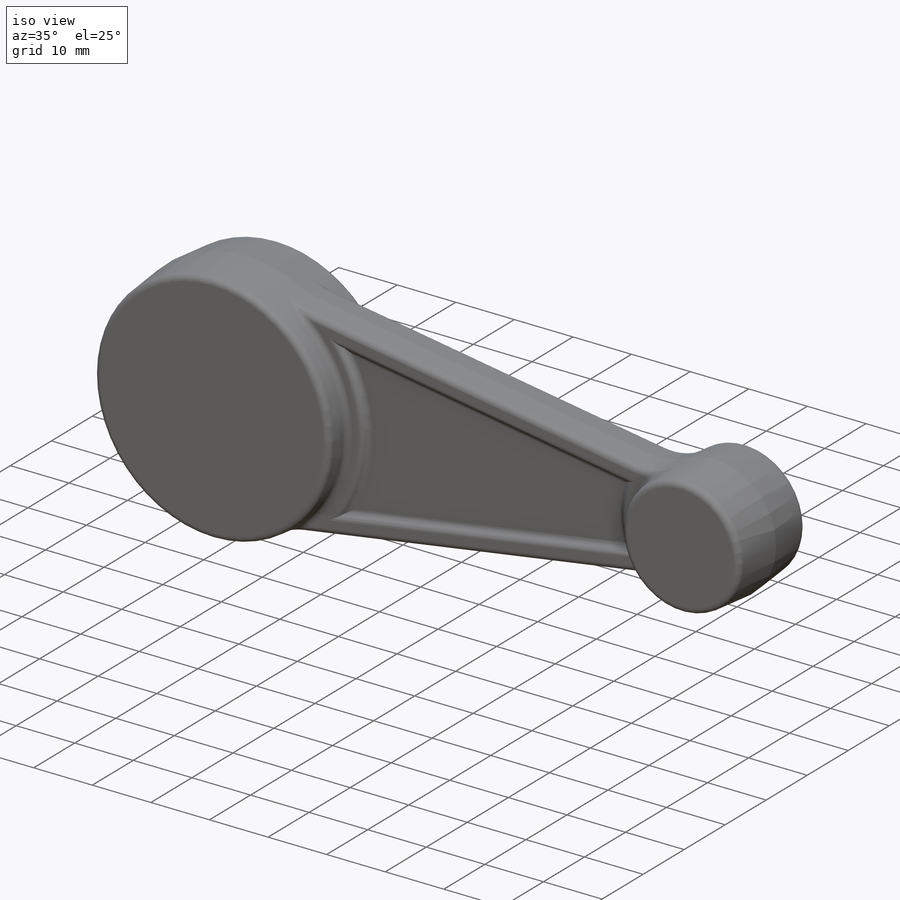
[diagram: iso view]
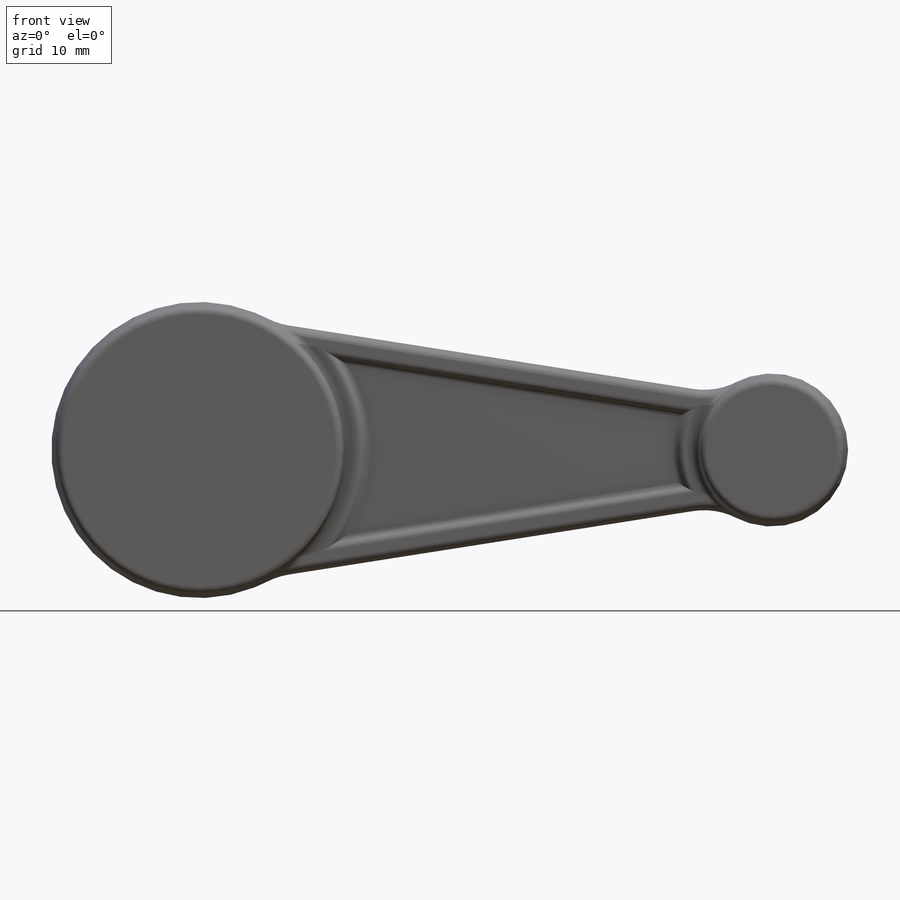
[diagram: front view]
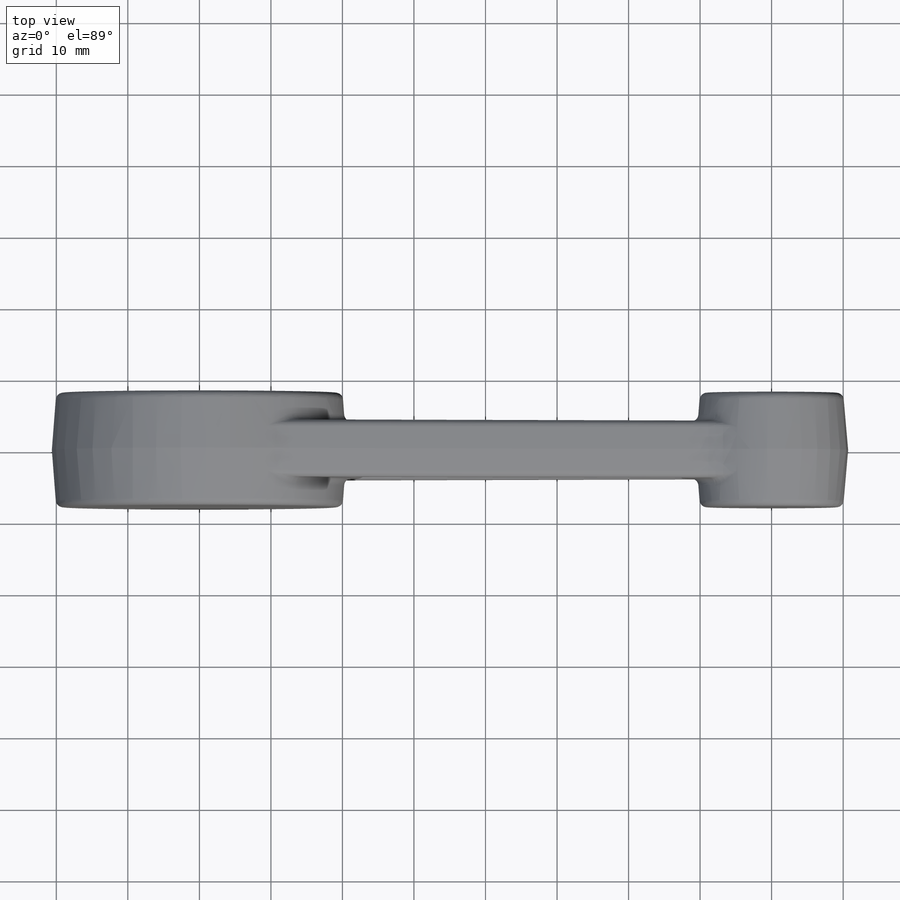
[diagram: top view]
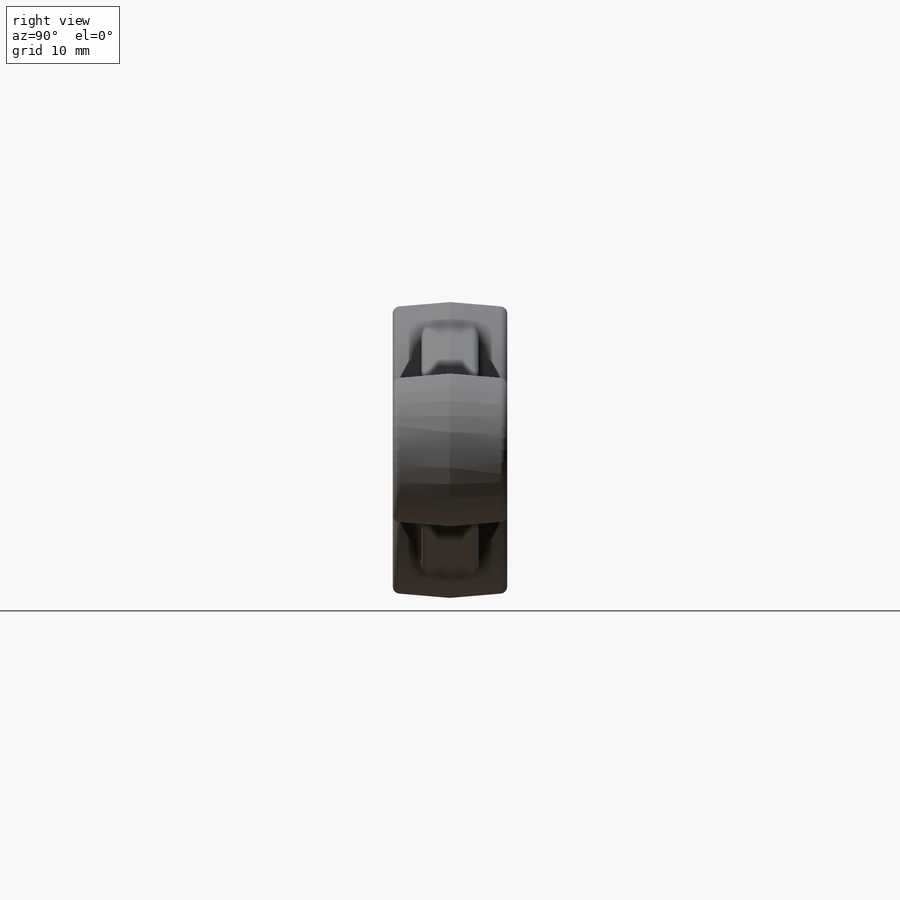
[diagram: right view]
SOLIDWORKS PART (.sldprt)
format: sldprt  version: not decoded by parser v0  size: 483,840 bytes
history: native  units: mm
features: fillet x6, extrude x4, plane x3, sketch x3, material x1, cut_extrude x1, mirror x1 (+8 scaffold rows collapsed)
feature tree (27):
  scaffold x8  (default folders/planes/origin — collapsed)
  material  "Matériau <non spécifié>"
  plane  "Plan de face"
  plane  "Plan de dessus"
  plane  "Plan de droite"
  sketch  "Esquisse1"  dims[c1.D1=20.0mm c1.D2=10.0mm c1.D3=70.0mm c1.D4=60.0mm c2.D3=16.0mm c2.D4=15.0mm c3.D3=35.0mm c3.D5=80.0mm]
  extrude  "Boss.-Extru.1"  Depth=4mm
  sketch  "Esquisse3"
  extrude  "Boss.-Extru.3"  Depth=4mm
  sketch  "Esquisse4"  dims[c1.D1=20.0mm c1.D2=~13.862962mm c2.D1=3.0mm c2.D2=3.0mm c2.D3=3.0mm]
  cut_extrude  "Enlèv. mat.-Extru.1"  Depth=1mm
  extrude  "Dépouille3"  [1 undecoded]
  extrude  "Dépouille4"  [1 undecoded]
  fillet  "Congé4"  Radius=10mm
  fillet  "Congé6"  Radius=1mm
  fillet  "Congé7"  Radius=1mm
  fillet  "Congé8"  Radius=1mm
  fillet  "Congé9"  Radius=1mm
  fillet  "Congé10"  Radius=1mm
  mirror  "Symétrie1"
decode coverage: 11 of 15 modeling features carry decoded parameters
note: ~ marks probable driven/reference dimensions
note: 2 parameter values undecoded
note: suppression state not decoded; provenance and decode notes live in map.json
